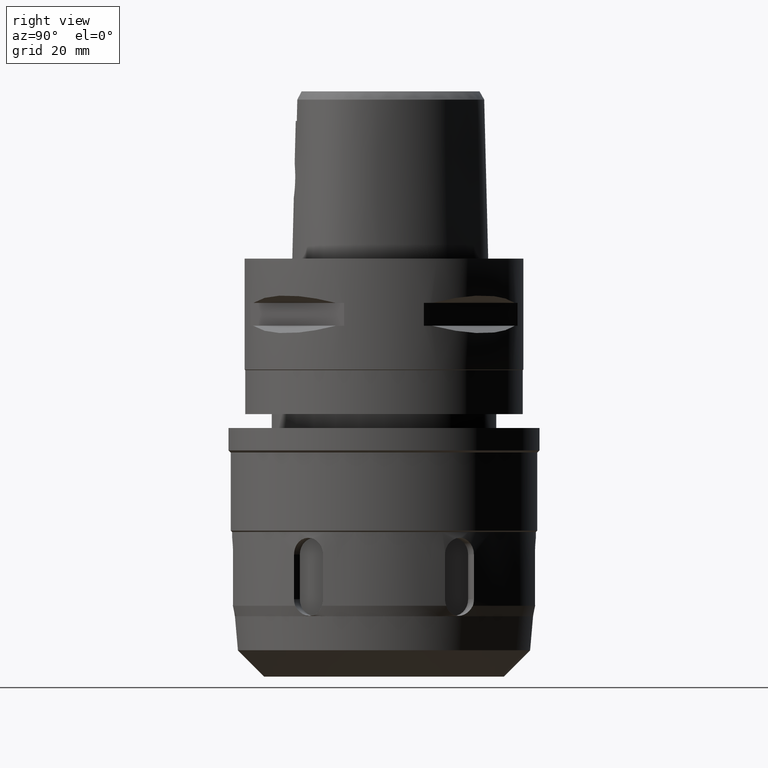
[diagram: clean part render]
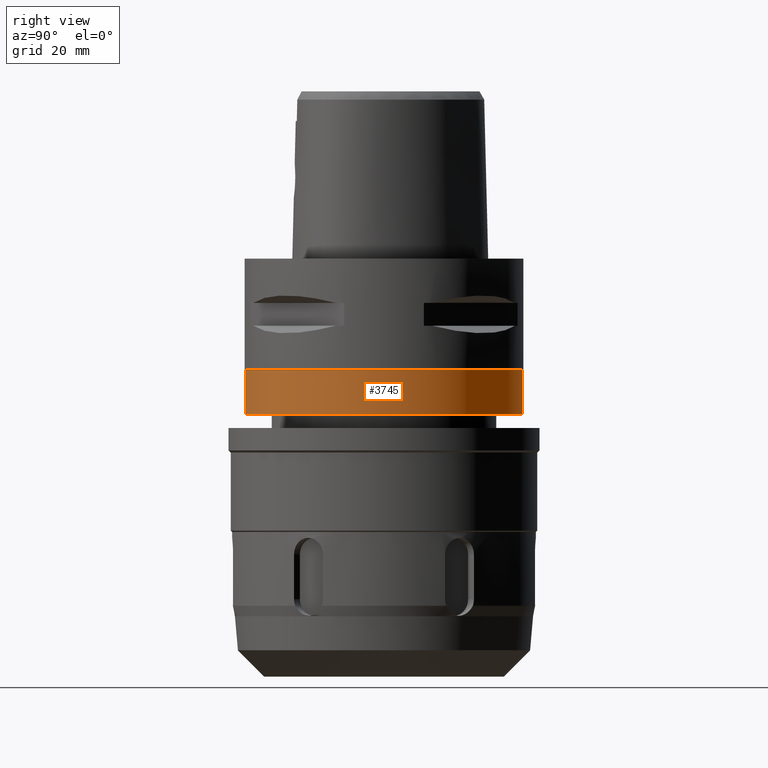
[diagram: same view with one face highlighted and labeled with its STEP entity id]
A machine part, right view. The second image highlights one B-rep face of the part: STEP entity #3745.
In plain terms, the highlighted cylindrical surface (partial cylindrical patch) has radius 24.9 mm, axis along (0, 0, -1).
Its self-contained STEP definition (entity closure, byte-faithful):
#503=CARTESIAN_POINT('',(0.E0,0.E0,-2.E1));
#504=DIRECTION('',(0.E0,0.E0,-1.E0));
#505=DIRECTION('',(0.E0,1.E0,0.E0));
#506=AXIS2_PLACEMENT_3D('',#503,#504,#505);
#542=DIRECTION('',(0.E0,0.E0,-1.E0));
#543=VECTOR('',#542,7.9E0);
#544=CARTESIAN_POINT('',(0.E0,-2.49E1,-2.E1));
#545=LINE('',#544,#543);
#549=DIRECTION('',(0.E0,0.E0,-1.E0));
#550=VECTOR('',#549,7.9E0);
#551=CARTESIAN_POINT('',(0.E0,2.49E1,-2.E1));
#552=LINE('',#551,#550);
#556=CARTESIAN_POINT('',(0.E0,1.270571054115E-14,-2.79E1));
#557=DIRECTION('',(0.E0,0.E0,1.E0));
#558=DIRECTION('',(0.E0,-1.E0,0.E0));
#559=AXIS2_PLACEMENT_3D('',#556,#557,#558);
#2714=CARTESIAN_POINT('',(0.E0,2.49E1,-2.E1));
#2715=VERTEX_POINT('',#2714);
#2716=CARTESIAN_POINT('',(0.E0,-2.49E1,-2.E1));
#2717=VERTEX_POINT('',#2716);
#2718=CARTESIAN_POINT('',(0.E0,2.49E1,-2.79E1));
#2719=VERTEX_POINT('',#2718);
#2720=CARTESIAN_POINT('',(0.E0,-2.49E1,-2.79E1));
#2721=VERTEX_POINT('',#2720);
#3733=CARTESIAN_POINT('',(0.E0,1.270571054115E-14,3.75E0));
#3734=DIRECTION('',(0.E0,0.E0,-1.E0));
#3735=DIRECTION('',(0.E0,-1.E0,0.E0));
#3736=AXIS2_PLACEMENT_3D('',#3733,#3734,#3735);
#3737=CYLINDRICAL_SURFACE('',#3736,2.49E1);
#3738=ORIENTED_EDGE('',*,*,#3723,.T.);
#3740=ORIENTED_EDGE('',*,*,#3739,.F.);
#3741=ORIENTED_EDGE('',*,*,#3726,.F.);
#3742=ORIENTED_EDGE('',*,*,#3697,.F.);
#3743=EDGE_LOOP('',(#3738,#3740,#3741,#3742));
#3744=FACE_OUTER_BOUND('',#3743,.F.);
#507=CIRCLE('',#506,2.49E1);
#560=CIRCLE('',#559,2.49E1);
#3697=EDGE_CURVE('',#2715,#2717,#507,.T.);
#3723=EDGE_CURVE('',#2715,#2719,#552,.T.);
#3726=EDGE_CURVE('',#2717,#2721,#545,.T.);
#3739=EDGE_CURVE('',#2721,#2719,#560,.T.);
#3745=ADVANCED_FACE('',(#3744),#3737,.T.);